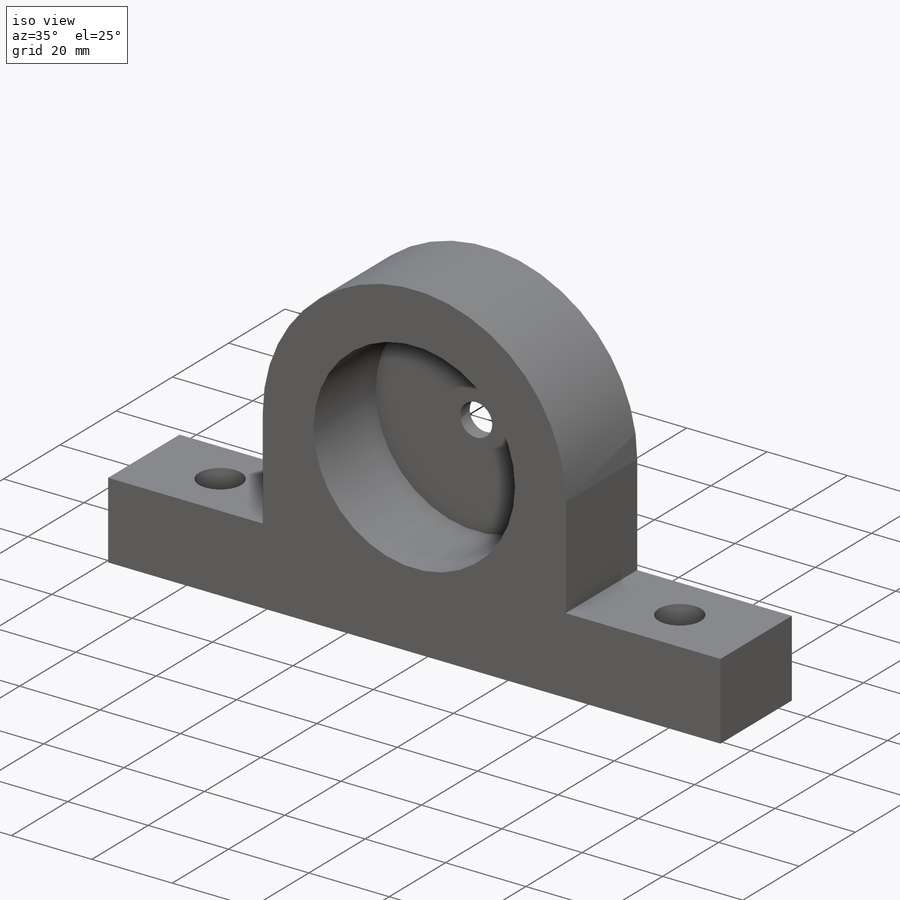
[diagram: iso view]
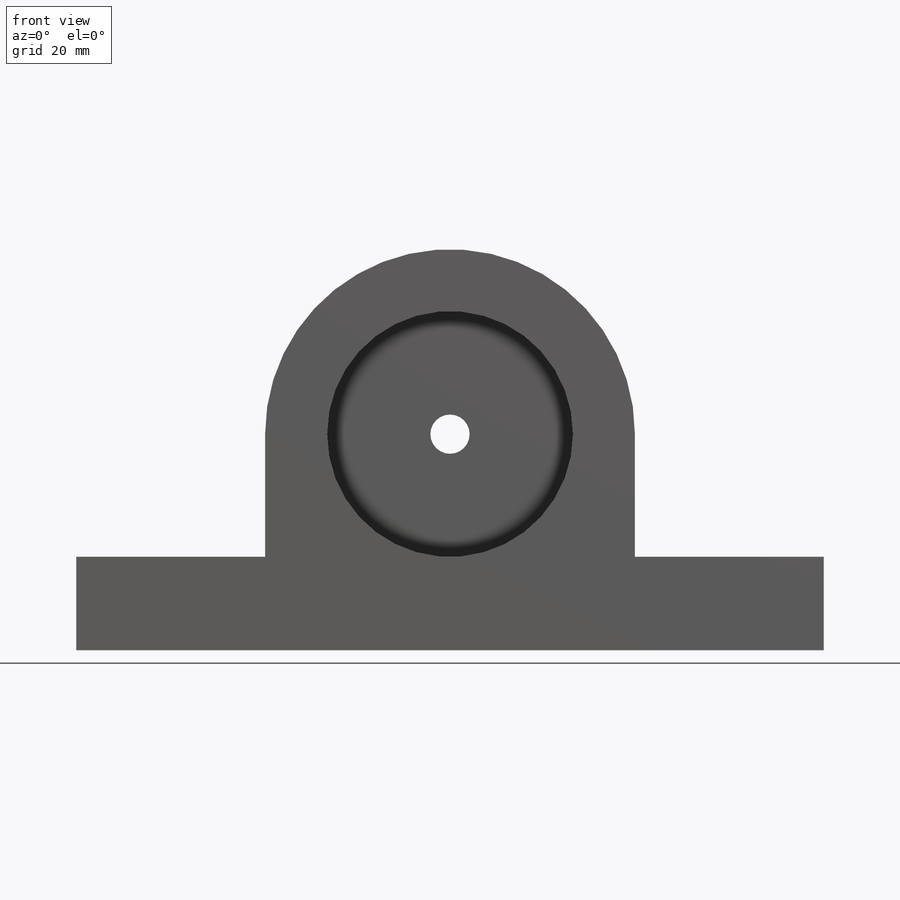
[diagram: front view]
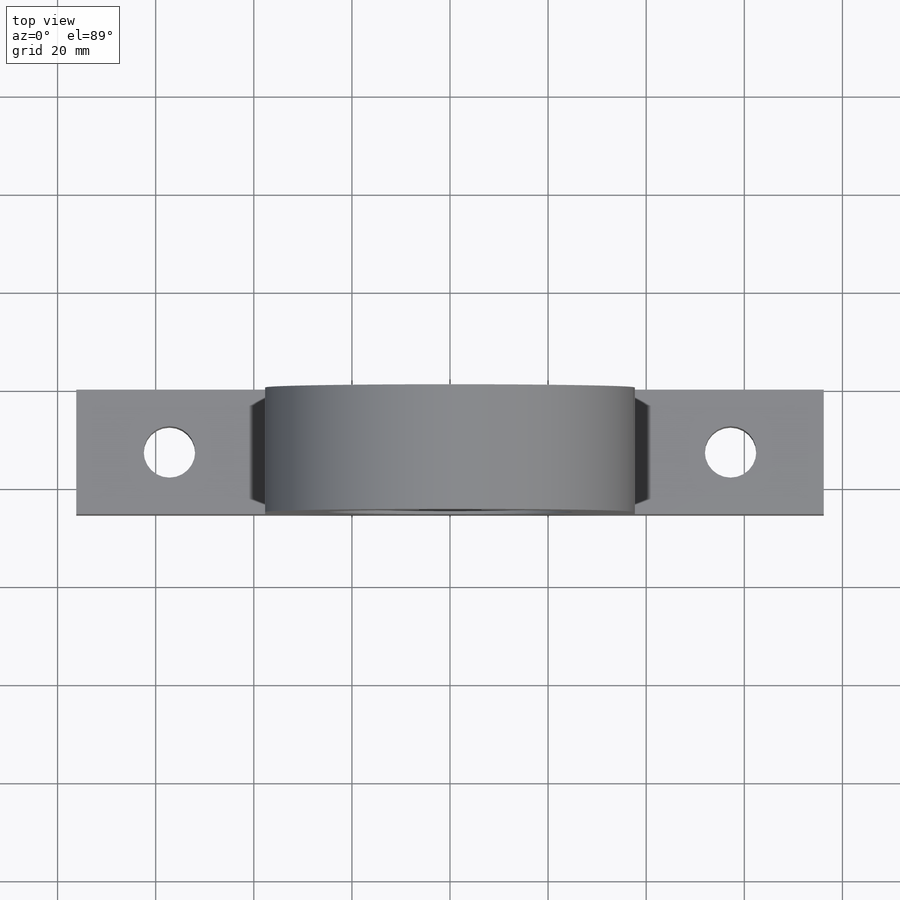
[diagram: top view]
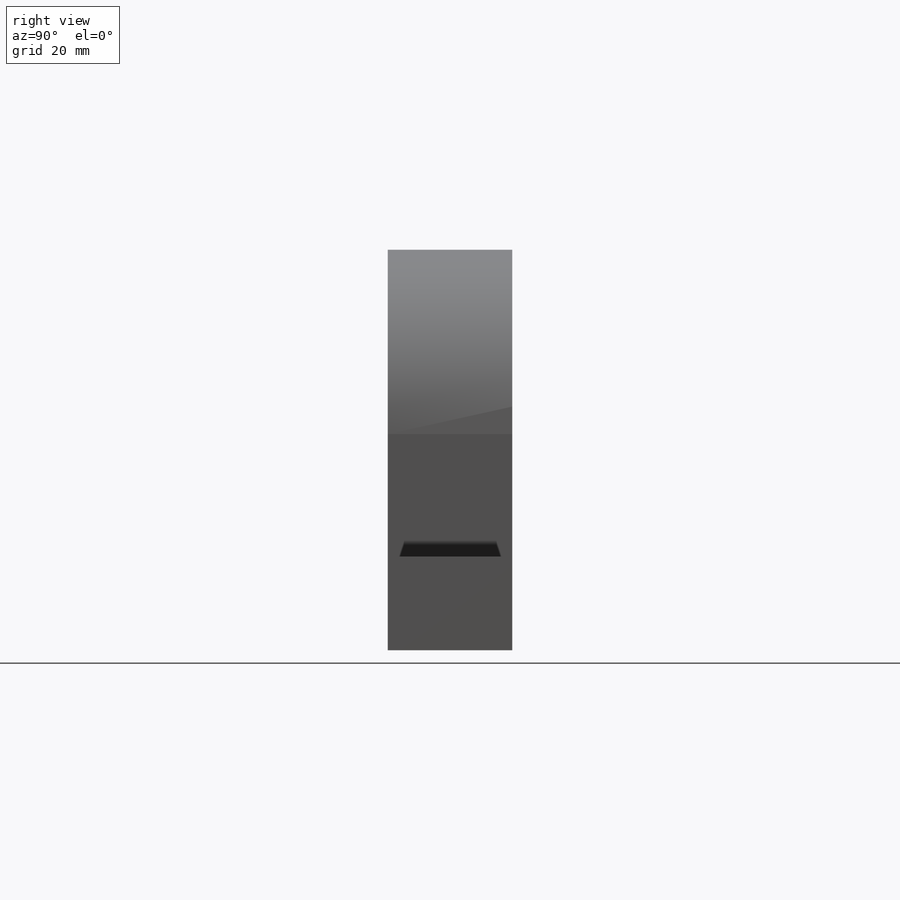
[diagram: right view]
SOLIDWORKS PART (.sldprt)
format: sldprt  version: not decoded by parser v0  size: 280,576 bytes
history: native  units: mm
features: sketch x6, cut_extrude x2, material x1, extrude x1, hole x1 (+12 scaffold rows collapsed)
feature tree (23):
  scaffold x12  (default folders/planes/origin — collapsed)
  material  "Material <not specified>"
  sketch  "Sketch1"  dims[c1.D3=50.0mm c1.D1=152.4mm c1.D2=19.05mm c2.D3=0.0mm c2.D4=0.0mm c2.D5=12.7mm]
  extrude  "Boss-Extrude1"  Depth=25.4mm
  sketch  "Sketch3"  dims[D1=50.1mm]
  cut_extrude  "Cut-Extrude1"  Depth=22mm
  sketch  "Sketch4"  dims[D1=19.0mm D2=19.0mm]
  hole  "M10 Clearance Hole1"  Diameter=11mm Depth=19.05mm
  sketch  "Sketch6"
  sketch  "Sketch7"  dims[hole-wizard template sketch: 59 standard entries collapsed; hole parameters kept: c18.Thru Hole Dia.=11.0mm c18.Thru Hole Depth=19.05mm]
  sketch  "Sketch11"  dims[c1.D1=15.0mm c2.D1=~22.355762deg c3.D1=15.0mm c4.D1=~22.355762deg]
  cut_extrude  "Cut-Extrude2"  Depth=10mm
decode coverage: 9 of 10 modeling features carry decoded parameters
note: ~ marks probable driven/reference dimensions
note: suppression state not decoded; provenance and decode notes live in map.json
